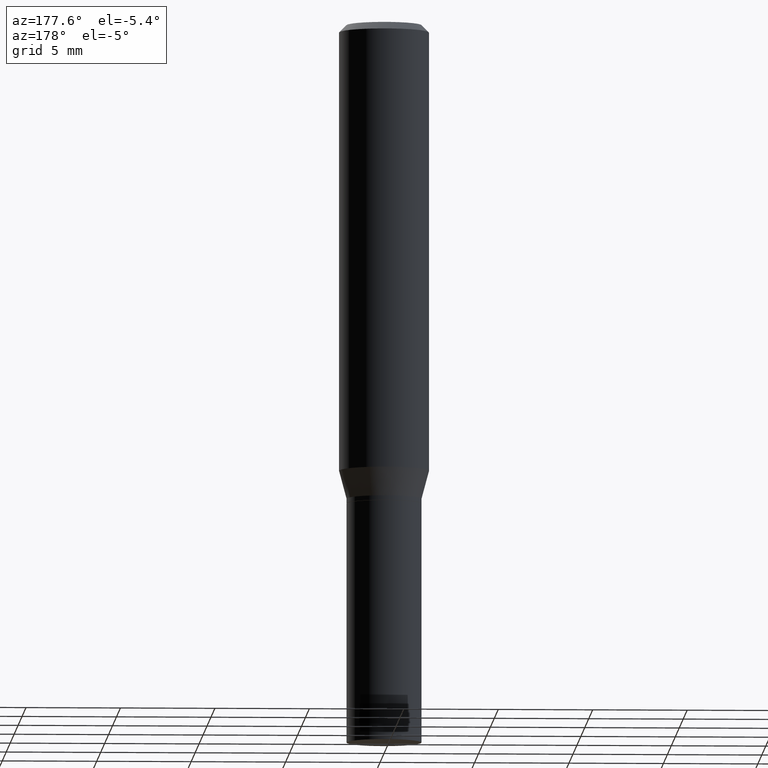
[diagram: clean part render]
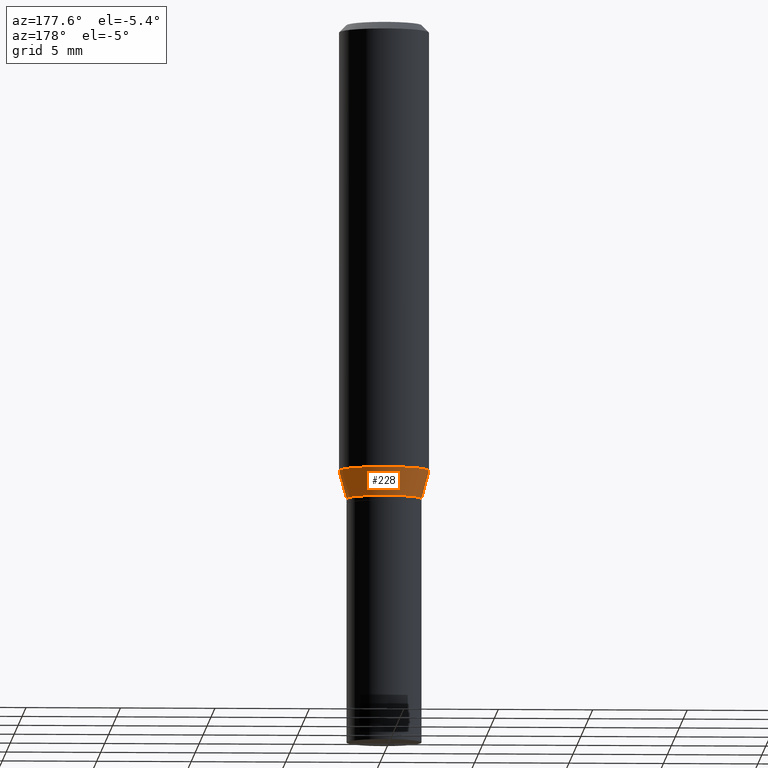
[diagram: same view with one face highlighted and labeled with its STEP entity id]
A machine part, auxiliary view. The second image highlights one B-rep face of the part: STEP entity #228.
In plain terms, the highlighted conical surface has half-angle 15 deg.
Its self-contained STEP definition (entity closure, byte-faithful):
#22 = DIRECTION ( 'NONE',  ( 0.2588190451025214611, 1.565188264969620982E-15, 0.9659258262890679791 ) ) ;
#23 = DIRECTION ( 'NONE',  ( 1.000000000000000000, -6.982962677686269077E-15, 0.000000000000000000 ) ) ;
#28 = VECTOR ( 'NONE', #216, 39.37007874015748143 ) ;
#30 = LINE ( 'NONE', #428, #28 ) ;
#43 = FACE_OUTER_BOUND ( 'NONE', #50, .T. ) ;
#49 = VERTEX_POINT ( 'NONE', #57 ) ;
#50 = EDGE_LOOP ( 'NONE', ( #160, #80, #400, #167 ) ) ;
#57 = CARTESIAN_POINT ( 'NONE',  ( 0.09375000000000001388, -3.907293739496527425E-15, -0.9315934048615475138 ) ) ;
#66 = CONICAL_SURFACE ( 'NONE', #163, 0.07810000000000004439, 0.2617993877991501850 ) ;
#72 = CIRCLE ( 'NONE', #342, 0.09375000000000001388 ) ;
#75 = VERTEX_POINT ( 'NONE', #319 ) ;
#80 = ORIENTED_EDGE ( 'NONE', *, *, #292, .T. ) ;
#160 = ORIENTED_EDGE ( 'NONE', *, *, #311, .T. ) ;
#163 = AXIS2_PLACEMENT_3D ( 'NONE', #194, #335, #406 ) ;
#167 = ORIENTED_EDGE ( 'NONE', *, *, #410, .F. ) ;
#188 = CIRCLE ( 'NONE', #207, 0.07810000000000004439 ) ;
#194 = CARTESIAN_POINT ( 'NONE',  ( 2.421014118123285332E-29, -3.456566525454714328E-15, -0.9900000000000001021 ) ) ;
#205 = VERTEX_POINT ( 'NONE', #290 ) ;
#207 = AXIS2_PLACEMENT_3D ( 'NONE', #315, #466, #23 ) ;
#216 = DIRECTION ( 'NONE',  ( -0.2588190451025214611, 5.211531920934550253E-15, 0.9659258262890679791 ) ) ;
#228 = ADVANCED_FACE ( 'NONE', ( #43 ), #66, .T. ) ;
#236 = DIRECTION ( 'NONE',  ( -2.445468806185136597E-29, 3.491481338843145583E-15, 1.000000000000000000 ) ) ;
#273 = CARTESIAN_POINT ( 'NONE',  ( -0.09375000000000001388, -2.586507173688346391E-15, -0.9315934048615475138 ) ) ;
#276 = CARTESIAN_POINT ( 'NONE',  ( 2.278182611636715174E-29, -3.252640988463440710E-15, -0.9315934048615475138 ) ) ;
#290 = CARTESIAN_POINT ( 'NONE',  ( -0.07810000000000004439, -2.744069911257211227E-15, -0.9900000000000001021 ) ) ;
#292 = EDGE_CURVE ( 'NONE', #205, #413, #30, .T. ) ;
#311 = EDGE_CURVE ( 'NONE', #75, #205, #188, .T. ) ;
#315 = CARTESIAN_POINT ( 'NONE',  ( 2.421014118123285332E-29, -3.456566525454714328E-15, -0.9900000000000001021 ) ) ;
#317 = VECTOR ( 'NONE', #22, 39.37007874015748143 ) ;
#319 = CARTESIAN_POINT ( 'NONE',  ( 0.07810000000000004439, -4.001935910582012553E-15, -0.9900000000000001021 ) ) ;
#331 = EDGE_CURVE ( 'NONE', #49, #413, #72, .T. ) ;
#335 = DIRECTION ( 'NONE',  ( -2.445468806185136597E-29, 3.491481338843145583E-15, 1.000000000000000000 ) ) ;
#342 = AXIS2_PLACEMENT_3D ( 'NONE', #276, #236, #349 ) ;
#348 = CARTESIAN_POINT ( 'NONE',  ( 0.07810000000000004439, -4.001935910582012553E-15, -0.9900000000000001021 ) ) ;
#349 = DIRECTION ( 'NONE',  ( 1.000000000000000000, -6.982962677686266711E-15, 0.000000000000000000 ) ) ;
#400 = ORIENTED_EDGE ( 'NONE', *, *, #331, .F. ) ;
#406 = DIRECTION ( 'NONE',  ( 1.000000000000000000, -6.982962677686269077E-15, 0.000000000000000000 ) ) ;
#410 = EDGE_CURVE ( 'NONE', #75, #49, #451, .T. ) ;
#413 = VERTEX_POINT ( 'NONE', #273 ) ;
#428 = CARTESIAN_POINT ( 'NONE',  ( -0.07810000000000004439, -2.901632648826075669E-15, -0.9900000000000001021 ) ) ;
#451 = LINE ( 'NONE', #348, #317 ) ;
#466 = DIRECTION ( 'NONE',  ( -2.445468806185136597E-29, 3.491481338843145583E-15, 1.000000000000000000 ) ) ;